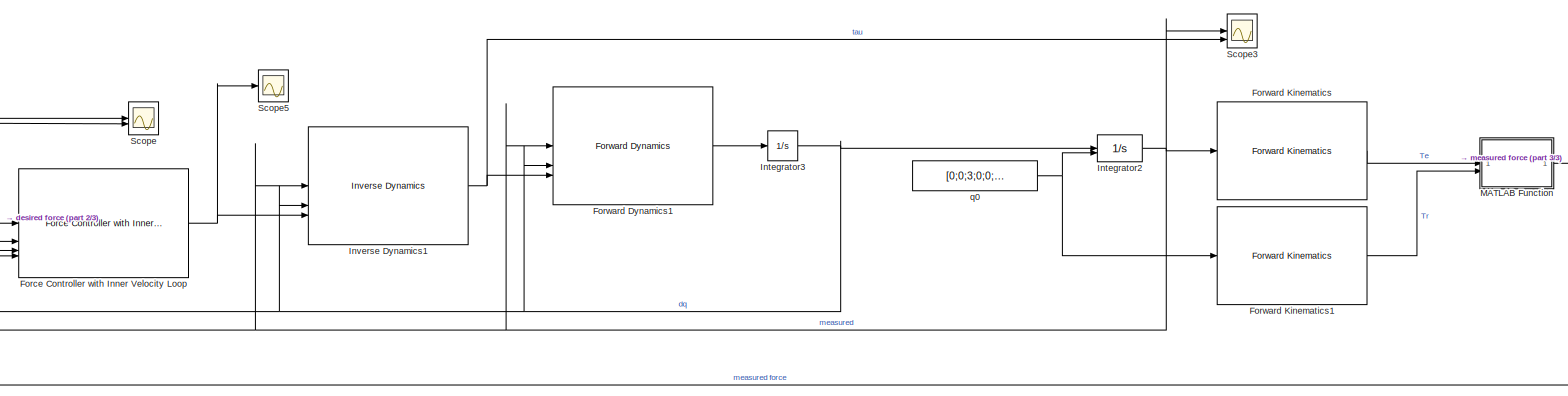
[diagram: root canvas - part 1/3, most of the canvas]
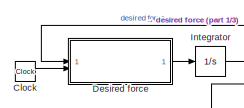
[diagram: root canvas - part 2/3, middle left region]
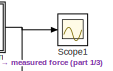
[diagram: root canvas - part 3/3, middle right region]
MODEL slx_95f69430a692
KIND model
CONFIG AbsTol = auto
CONFIG EnableMultiTasking = off
CONFIG FixedStep = dt
CONFIG MaxStep = auto
CONFIG MinStep = auto
CONFIG RelTol = 1e-3
CONFIG SampleTimeConstraint = Unconstrained
CONFIG SolverName = ode1
CONFIG StartTime = 0.0
CONFIG StopTime = 100
WORKSPACE source: mxarray member
WORKSPACE Kd_orient_value = 10
WORKSPACE Kd_pos_value = 100
WORKSPACE Kf_pos = 1
WORKSPACE Kf_rot = 1
WORKSPACE Kp_orient_value = 1
WORKSPACE Kp_pos_value = 1
WORKSPACE Md_pos = 1
WORKSPACE Md_rot = 1
WORKSPACE dt = 0.001
BLOCK [Clock] Clock
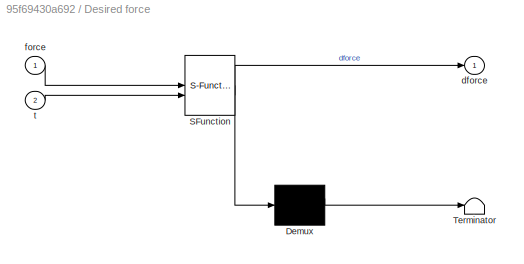
BLOCK [SubSystem] Desired force
  ErrorFcn = Stateflow.Translate.translate
  PermitHierarchicalResolution = ExplicitOnly
  SFBlockType = MATLAB Function
  TreatAsAtomicUnit = on
BLOCK [Demux] Desired force/ Demux 
  Outputs = 1
BLOCK [S-Function] Desired force/ SFunction 
  EnableBusSupport = on
  FunctionName = sf_sfun
  PortCounts = [2 2]
  SFcnIsStateOwnerBlock = off
  SFunctionDeploymentMode = off
  Tag = Stateflow S-Function 2
BLOCK [Terminator] Desired force/ Terminator 
BLOCK [Outport] Desired force/dforce
BLOCK [Inport] Desired force/force
BLOCK [Inport] Desired force/t
  Port = 2
BLOCK [Reference] Force Controller with Inner Velocity Loop  REF=sdu_controllers/Controllers/Force Controller with Inner Velocity Loop
  SourceBlock = sdu_controllers/Controllers/Force Controller with Inner Velocity Loop
  SourceType = cartesian_space_control.force_control_inner_velocity_loop
BLOCK [Reference] Forward Dynamics1  REF=sdu_controllers/Dynamics/Forward Dynamics
  SourceBlock = sdu_controllers/Dynamics/Forward Dynamics
  SourceType = forward_dynamics
BLOCK [Reference] Forward Kinematics  REF=sdu_controllers/Kinematics/Forward Kinematics
  SourceBlock = sdu_controllers/Kinematics/Forward Kinematics
  SourceType = kinematics.forward_kinematics
BLOCK [Reference] Forward Kinematics1  REF=sdu_controllers/Kinematics/Forward Kinematics
  SourceBlock = sdu_controllers/Kinematics/Forward Kinematics
  SourceType = kinematics.forward_kinematics
BLOCK [Integrator] Integrator
  InitialCondition = zeros(6, 1)
BLOCK [Integrator] Integrator2
  InitialCondition = [0; 0; 3.; 0; 0; 0; 0]
  InitialConditionSource = external
BLOCK [Integrator] Integrator3
  InitialCondition = zeros(7,1)
BLOCK [Reference] Inverse Dynamics1  REF=sdu_controllers/Dynamics/Inverse Dynamics
  SourceBlock = sdu_controllers/Dynamics/Inverse Dynamics
  SourceType = inverse_dynamics
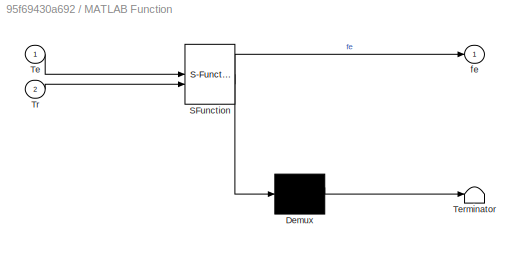
BLOCK [SubSystem] MATLAB Function
  ErrorFcn = Stateflow.Translate.translate
  PermitHierarchicalResolution = ExplicitOnly
  SFBlockType = MATLAB Function
  TreatAsAtomicUnit = on
BLOCK [Demux] MATLAB Function/ Demux 
  Outputs = 1
BLOCK [S-Function] MATLAB Function/ SFunction 
  EnableBusSupport = on
  FunctionName = sf_sfun
  PortCounts = [2 2]
  SFcnIsStateOwnerBlock = off
  SFunctionDeploymentMode = off
  Tag = Stateflow S-Function 1
BLOCK [Terminator] MATLAB Function/ Terminator 
BLOCK [Inport] MATLAB Function/Te
BLOCK [Inport] MATLAB Function/Tr
  Port = 2
BLOCK [Outport] MATLAB Function/fe
BLOCK [Scope] Scope
  Floating = off
  NumInputPorts = 2
  ScopeSpecificationString = Simulink.scopes.TimeScopeBlockCfg('CurrentConfiguration', extmgr.ConfigurationSet(extmgr.Configuration('Core','General UI',true),extmgr.Configuration('Core','Source UI',true),extmgr.Configuration('Sources','WiredSimulink',true,'DataLoggingVariableName','ScopeData1'),extmgr.Configuration('Visuals','Time Domain',true,'SerializedDisplays',{struct('MinYLimReal','-124.99686','MaxYLimReal','125.00314','...<+2020ch>
BLOCK [Scope] Scope1
  Floating = off
  NumInputPorts = 1
  ScopeSpecificationString = Simulink.scopes.TimeScopeBlockCfg('CurrentConfiguration', extmgr.ConfigurationSet(extmgr.Configuration('Core','General UI',true),extmgr.Configuration('Core','Source UI',true),extmgr.Configuration('Sources','WiredSimulink',true,'DataLoggingVariableName','ScopeData2'),extmgr.Configuration('Visuals','Time Domain',true,'SerializedDisplays',{struct('MinYLimReal','-124.756','MaxYLimReal','124.76228','YL...<+1569ch>
BLOCK [Scope] Scope3
  Floating = off
  NumInputPorts = 3
  ScopeSpecificationString = Simulink.scopes.TimeScopeBlockCfg('CurrentConfiguration', extmgr.ConfigurationSet(extmgr.Configuration('Core','General UI',true),extmgr.Configuration('Core','Source UI',true),extmgr.Configuration('Sources','WiredSimulink',true,'DataLoggingVariableName','ScopeData3'),extmgr.Configuration('Visuals','Time Domain',true,'SerializedDisplays',{struct('MinYLimReal','-395.45944','MaxYLimReal','3526.23399',...<+3684ch>
BLOCK [Scope] Scope5
  Floating = off
  NumInputPorts = 1
  ScopeSpecificationString = Simulink.scopes.TimeScopeBlockCfg('CurrentConfiguration', extmgr.ConfigurationSet(extmgr.Configuration('Core','General UI',true),extmgr.Configuration('Core','Source UI',true),extmgr.Configuration('Sources','WiredSimulink',true,'DataLoggingVariableName','ScopeData5'),extmgr.Configuration('Visuals','Time Domain',true,'SerializedDisplays',{struct('MinYLimReal','-0.01202','MaxYLimReal','0.06877','YLab...<+1767ch>
BLOCK [Constant] q0
  Value = [0;0;3;0;0;0;0]
LINE Clock:1 -> Desired force:2
LINE Desired force:1 -> Integrator:1
NET Force Controller with Inner Velocity Loop:1 -> Inverse Dynamics1:3, Scope5:1
LINE Forward Dynamics1:1 -> Integrator3:1
LINE Forward Kinematics1:1 -> MATLAB Function:2
LINE Forward Kinematics:1 -> MATLAB Function:1
NET Integrator2:1 -> Force Controller with Inner Velocity Loop:3, Forward Dynamics1:1, Forward Kinematics:1, Inverse Dynamics1:1, Scope3:1
NET Integrator3:1 -> Force Controller with Inner Velocity Loop:4, Forward Dynamics1:2, Integrator2:1, Inverse Dynamics1:2
NET Integrator:1 -> Desired force:1, Force Controller with Inner Velocity Loop:1, Scope:1
NET Inverse Dynamics1:1 -> Forward Dynamics1:3, Scope3:3
NET MATLAB Function:1 -> Force Controller with Inner Velocity Loop:2, Scope1:1, Scope:2
NET q0:1 -> Forward Kinematics1:1, Integrator2:2
note: NET lines group one-source signal fan-out (src -> all destinations, sorted); 1:1 wires keep LINE
CHART Desired force states=1 transitions=1
  STATE_LABEL 'eML_blk_kernel()'
  STATE_LABEL 'SCRIPT:\nfunction dforce = fcn(force, t)\n\ndforce = [0;\n          pi * cos(pi * t / 50) / 5;\n          2 * pi * cos(pi * t / 50);\n          0;\n          0;\n          0];'
CHART MATLAB Function states=1 transitions=1
  STATE_LABEL 'eML_blk_kernel()'
  STATE_LABEL 'SCRIPT:\nfunction fe = env(Te, Tr)\n\nxe = Te(1:3, 4);\nxr = Tr(1:3, 4);\n\nKenv = 100;\nfe = [Kenv * (xe - xr);\n      zeros(3, 1)];'
CHART  states=0 transitions=0
CHART  states=0 transitions=0
